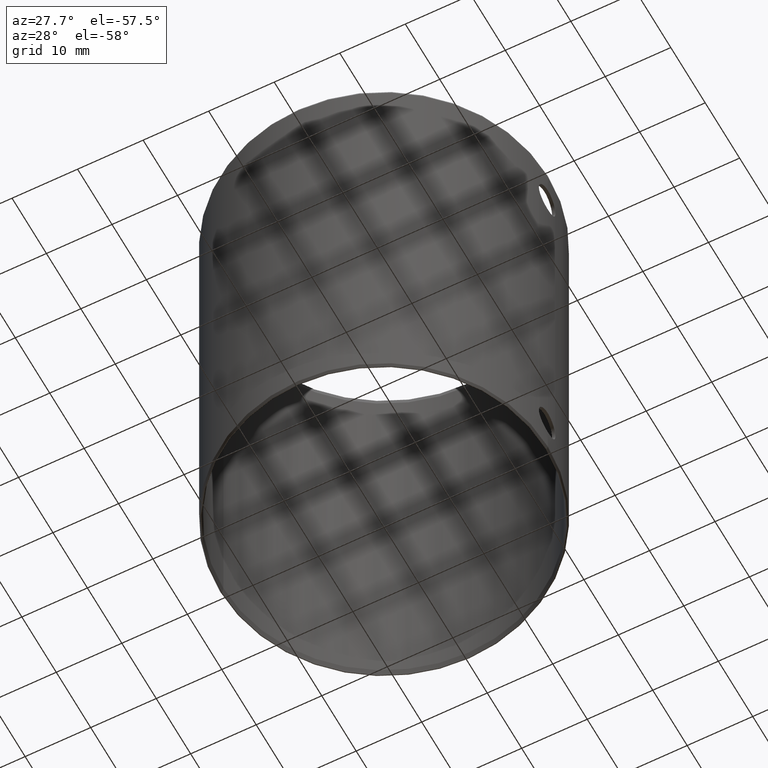
[diagram: clean part render]
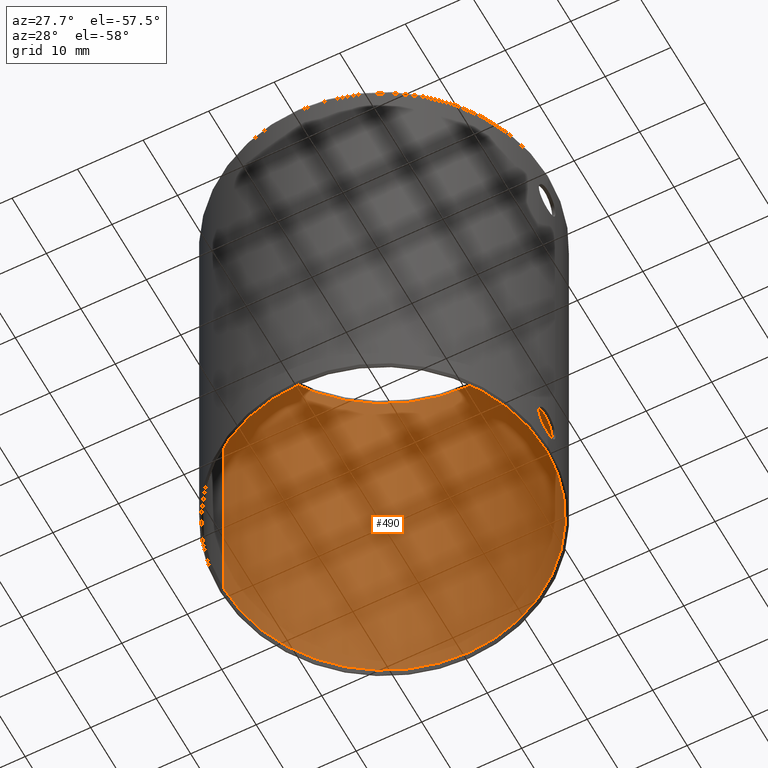
[diagram: same view with one face highlighted and labeled with its STEP entity id]
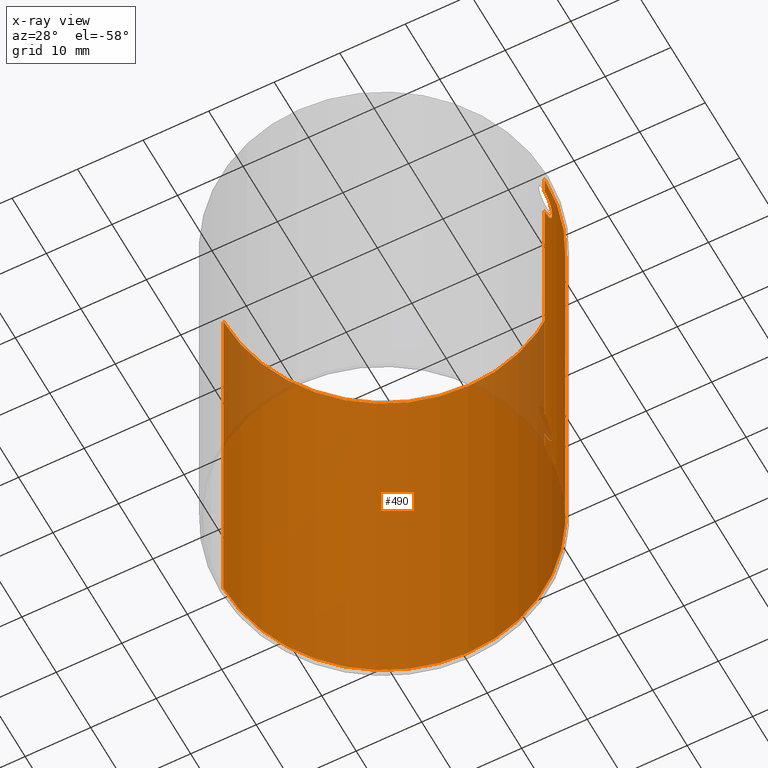
[diagram: x-ray of the same camera — body ghosted, the highlighted face saturated]
A machine part, auxiliary view. The second image highlights one B-rep face of the part: STEP entity #490.
The next image is the same camera in x-ray: the body ghosted, the highlighted face saturated — about 8% of this face is hidden behind the body in this view.
In plain terms, the highlighted cylindrical surface (partial cylindrical patch) has radius 24.5 mm, axis along (-0, -0, -1).
Its self-contained STEP definition (entity closure, byte-faithful):
#5 = VECTOR ( 'NONE', #476, 1000.000000000000000 ) ;
#17 = EDGE_CURVE ( 'NONE', #528, #645, #641, .T. ) ;
#19 = VERTEX_POINT ( 'NONE', #29 ) ;
#27 = CARTESIAN_POINT ( 'NONE',  ( 24.41151110846013600, 2.082251539747878200, 61.29633365754183000 ) ) ;
#28 = CARTESIAN_POINT ( 'NONE',  ( 24.38955891432469900, 2.323864925475290100, 63.11976947958540800 ) ) ;
#29 = CARTESIAN_POINT ( 'NONE',  ( -24.50000000000000000, 0.0000000000000000000, 1.000000000000042600 ) ) ;
#30 = EDGE_CURVE ( 'NONE', #325, #302, #788, .T. ) ;
#32 = CARTESIAN_POINT ( 'NONE',  ( 24.38215367992610500, 2.400121235163028600, 62.65668549765766900 ) ) ;
#37 = CARTESIAN_POINT ( 'NONE',  ( 24.43338947659767500, 1.808801199729553700, 8.085156302647970300 ) ) ;
#40 = CARTESIAN_POINT ( 'NONE',  ( 24.42559035520906400, 1.910012036205030100, 7.961651414167699900 ) ) ;
#44 = CARTESIAN_POINT ( 'NONE',  ( 24.50000000000000000, 3.000384657911015500E-015, 69.00000000000000000 ) ) ;
#52 = CARTESIAN_POINT ( 'NONE',  ( 24.50000000000000000, 3.000384657911015500E-015, 68.00000000000015600 ) ) ;
#53 = CARTESIAN_POINT ( 'NONE',  ( -24.50000000000000000, 0.0000000000000000000, 68.00000000000015600 ) ) ;
#54 = CARTESIAN_POINT ( 'NONE',  ( 24.50000000000000000, -7.960204194457795500E-016, 8.900000000000000400 ) ) ;
#68 = FACE_OUTER_BOUND ( 'NONE', #667, .T. ) ;
#79 = ORIENTED_EDGE ( 'NONE', *, *, #787, .T. ) ;
#84 = CARTESIAN_POINT ( 'NONE',  ( 24.50000000000000400, 0.1566461560698938200, 4.099999999999999600 ) ) ;
#85 = CARTESIAN_POINT ( 'NONE',  ( 24.38369107138436600, 2.384647135837939300, 62.81292241405778000 ) ) ;
#92 = CARTESIAN_POINT ( 'NONE',  ( 24.50000000000000000, 3.000384675787022100E-015, 4.099999999999999600 ) ) ;
#94 = CARTESIAN_POINT ( 'NONE',  ( 24.38955891432469200, 2.323864925475296800, 7.119769479585399600 ) ) ;
#99 = CARTESIAN_POINT ( 'NONE',  ( 24.38964322231983000, 2.322982828804307100, 5.876929524469598000 ) ) ;
#105 = DIRECTION ( 'NONE',  ( -0.0000000000000000000, -0.0000000000000000000, -1.000000000000000000 ) ) ;
#106 = ORIENTED_EDGE ( 'NONE', *, *, #598, .T. ) ;
#109 = CARTESIAN_POINT ( 'NONE',  ( 24.50000000000000000, 3.000384657911015500E-015, 69.00000000000000000 ) ) ;
#129 = CARTESIAN_POINT ( 'NONE',  ( 24.42575234937275400, 1.907948699616059700, 5.035651715478032900 ) ) ;
#132 = VECTOR ( 'NONE', #671, 1000.000000000000000 ) ;
#136 = CARTESIAN_POINT ( 'NONE',  ( 24.43338947659767900, 1.808801199729551000, 64.08515630264796000 ) ) ;
#140 = CARTESIAN_POINT ( 'NONE',  ( 24.47196524663253200, 1.206838727512015400, 60.40208118236046900 ) ) ;
#146 = CARTESIAN_POINT ( 'NONE',  ( 24.44875390968204000, 1.587676087577083000, 8.306589860733083700 ) ) ;
#170 = ORIENTED_EDGE ( 'NONE', *, *, #30, .T. ) ;
#186 = CARTESIAN_POINT ( 'NONE',  ( 24.42559035520906000, 1.910012036205026100, 63.96165141416768300 ) ) ;
#187 = CARTESIAN_POINT ( 'NONE',  ( 24.50000000000000700, 0.1566461560698932900, 60.10000000000000100 ) ) ;
#194 = CARTESIAN_POINT ( 'NONE',  ( 24.50000000000000000, -7.960204194457795500E-016, 8.900000000000000400 ) ) ;
#196 = CARTESIAN_POINT ( 'NONE',  ( 24.49259097793635200, 0.6220691795854884600, 4.176651443060187300 ) ) ;
#197 = CARTESIAN_POINT ( 'NONE',  ( 24.38373468376589800, 2.384203977574828000, 6.183713051622882900 ) ) ;
#198 = CARTESIAN_POINT ( 'NONE',  ( 24.50000000000000700, 0.3172775841286012400, 8.900000000000002100 ) ) ;
#214 = DIRECTION ( 'NONE',  ( 1.000000000000000000, 0.0000000000000000000, 0.0000000000000000000 ) ) ;
#232 = LINE ( 'NONE', #44, #132 ) ;
#247 = CARTESIAN_POINT ( 'NONE',  ( 24.38964322231983300, 2.322982828804302600, 61.87692952446958800 ) ) ;
#250 = AXIS2_PLACEMENT_3D ( 'NONE', #674, #274, #214 ) ;
#251 = CARTESIAN_POINT ( 'NONE',  ( 24.42575234937275400, 1.907948699616057300, 61.03565171547803200 ) ) ;
#252 = CARTESIAN_POINT ( 'NONE',  ( 24.50000000000000700, 0.3172775841285949700, 64.90000000000002000 ) ) ;
#258 = CARTESIAN_POINT ( 'NONE',  ( 24.49353724681168700, 0.6324934365665536600, 8.836158783216284000 ) ) ;
#259 = CARTESIAN_POINT ( 'NONE',  ( 24.47196524663252900, 1.206838727512015800, 4.402081182360468000 ) ) ;
#260 = CIRCLE ( 'NONE', #250, 24.50000000000000000 ) ;
#262 = CARTESIAN_POINT ( 'NONE',  ( 24.40489148465764700, 2.157526364655349300, 7.562937783976222400 ) ) ;
#266 = EDGE_CURVE ( 'NONE', #528, #658, #540, .T. ) ;
#273 = CARTESIAN_POINT ( 'NONE',  ( 0.0000000000000000000, 0.0000000000000000000, 69.00000000000000000 ) ) ;
#274 = DIRECTION ( 'NONE',  ( 0.0000000000000000000, 0.0000000000000000000, 1.000000000000000000 ) ) ;
#299 = VECTOR ( 'NONE', #105, 1000.000000000000000 ) ;
#302 = VERTEX_POINT ( 'NONE', #691 ) ;
#307 = CARTESIAN_POINT ( 'NONE',  ( 24.50000000000000000, 3.000384657911015500E-015, 69.00000000000000000 ) ) ;
#309 = LINE ( 'NONE', #467, #5 ) ;
#314 = CARTESIAN_POINT ( 'NONE',  ( 24.47724968366754400, 1.065411481757196000, 64.65622814805495000 ) ) ;
#317 = CARTESIAN_POINT ( 'NONE',  ( 24.40502357541037500, 2.156036257598050300, 5.434061330933637600 ) ) ;
#323 = CARTESIAN_POINT ( 'NONE',  ( 24.45639106743687600, 1.467020564352039500, 8.405969377969761100 ) ) ;
#325 = VERTEX_POINT ( 'NONE', #689 ) ;
#337 = AXIS2_PLACEMENT_3D ( 'NONE', #546, #394, #782 ) ;
#348 = CARTESIAN_POINT ( 'NONE',  ( 24.50000000000000000, 3.000384657911015500E-015, 1.000000000000042600 ) ) ;
#381 = CARTESIAN_POINT ( 'NONE',  ( 24.45659574403835300, 1.474507113349707900, 60.58069917553353200 ) ) ;
#385 = CARTESIAN_POINT ( 'NONE',  ( 24.38217768668483700, 2.399877344770530800, 62.33962226241188600 ) ) ;
#393 = ORIENTED_EDGE ( 'NONE', *, *, #639, .T. ) ;
#394 = DIRECTION ( 'NONE',  ( -0.0000000000000000000, -0.0000000000000000000, -1.000000000000000000 ) ) ;
#397 = CARTESIAN_POINT ( 'NONE',  ( 24.43355421998985800, 1.806582362493937900, 4.912318707027452500 ) ) ;
#402 = DIRECTION ( 'NONE',  ( -0.0000000000000000000, -0.0000000000000000000, -1.000000000000000000 ) ) ;
#427 = CARTESIAN_POINT ( 'NONE',  ( 24.41151110846014300, 2.082251539747880900, 5.296333657541834100 ) ) ;
#441 = CARTESIAN_POINT ( 'NONE',  ( 24.39406583584257100, 2.276668631354080500, 61.72443727958553700 ) ) ;
#442 = CARTESIAN_POINT ( 'NONE',  ( 24.49353724681169500, 0.6324934365665468800, 64.83615878321627700 ) ) ;
#444 = DIRECTION ( 'NONE',  ( -0.0000000000000000000, -0.0000000000000000000, -1.000000000000000000 ) ) ;
#446 = ORIENTED_EDGE ( 'NONE', *, *, #17, .F. ) ;
#459 = CARTESIAN_POINT ( 'NONE',  ( 24.39395661505486500, 2.277834290487130700, 7.272157815390216700 ) ) ;
#467 = CARTESIAN_POINT ( 'NONE',  ( -24.50000000000000000, 0.0000000000000000000, 69.00000000000000000 ) ) ;
#476 = DIRECTION ( 'NONE',  ( -0.0000000000000000000, -0.0000000000000000000, -1.000000000000000000 ) ) ;
#490 = ADVANCED_FACE ( 'NONE', ( #68 ), #579, .F. ) ;
#497 = CARTESIAN_POINT ( 'NONE',  ( 24.39406583584257100, 2.276668631354085800, 5.724437279585534300 ) ) ;
#509 = CARTESIAN_POINT ( 'NONE',  ( 24.41136934985186700, 2.083904183028315100, 63.70079731468037200 ) ) ;
#512 = CARTESIAN_POINT ( 'NONE',  ( 24.49849772429317300, 0.3123973903241306600, 60.11518838233643400 ) ) ;
#515 = CARTESIAN_POINT ( 'NONE',  ( 24.50000000000000000, -6.938893903907228400E-015, 64.90000000000000600 ) ) ;
#517 = EDGE_CURVE ( 'NONE', #740, #302, #232, .T. ) ;
#525 = CARTESIAN_POINT ( 'NONE',  ( 24.47724968366754800, 1.065411481757203100, 8.656228148054960800 ) ) ;
#528 = VERTEX_POINT ( 'NONE', #786 ) ;
#540 = B_SPLINE_CURVE_WITH_KNOTS ( 'NONE', 3,
 ( #92, #84, #588, #196, #657, #259, #718, #397, #129, #427, #317, #497, #99, #197, #594, #660, #773, #94, #459, #262, #661, #40, #37, #146, #323, #715, #525, #258, #198, #194 ),
 .UNSPECIFIED., .F., .F.,
 ( 4, 2, 2, 2, 2, 2, 2, 2, 2, 2, 2, 2, 2, 2, 4 ),
 ( 0.007507993352721261200, 0.007977133049626215400, 0.008446272746531169700, 0.009384552140341078200, 0.009853691837246032400, 0.01032283153415098700, 0.01079197123105594300, 0.01126111092796089700, 0.01173025062486585100, 0.01219939032177080500, 0.01266853001867576000, 0.01313766971558071400, 0.01360680941248566800, 0.01407594910939062200, 0.01501422850320053100 ),
 .UNSPECIFIED. ) ;
#546 = CARTESIAN_POINT ( 'NONE',  ( 0.0000000000000000000, 0.0000000000000000000, 1.000000000000042600 ) ) ;
#574 = CARTESIAN_POINT ( 'NONE',  ( 24.50000000000000000, 3.000384675787416500E-015, 60.10000000000000100 ) ) ;
#579 = CYLINDRICAL_SURFACE ( 'NONE', #649, 24.50000000000000000 ) ;
#580 = CARTESIAN_POINT ( 'NONE',  ( 24.49259097793635200, 0.6220691795854880200, 60.17665144306018000 ) ) ;
#588 = CARTESIAN_POINT ( 'NONE',  ( 24.49849772429318100, 0.3123973903241312700, 4.115188382336428100 ) ) ;
#593 = VERTEX_POINT ( 'NONE', #53 ) ;
#594 = CARTESIAN_POINT ( 'NONE',  ( 24.38217768668483400, 2.399877344770534800, 6.339622262411877400 ) ) ;
#598 = EDGE_CURVE ( 'NONE', #19, #645, #653, .T. ) ;
#633 = VECTOR ( 'NONE', #444, 1000.000000000000000 ) ;
#639 = EDGE_CURVE ( 'NONE', #740, #593, #260, .T. ) ;
#641 = LINE ( 'NONE', #307, #633 ) ;
#643 = CARTESIAN_POINT ( 'NONE',  ( 24.40502357541037500, 2.156036257598044500, 61.43406133093363800 ) ) ;
#644 = CARTESIAN_POINT ( 'NONE',  ( 24.44875390968204700, 1.587676087577081000, 64.30658986073309800 ) ) ;
#645 = VERTEX_POINT ( 'NONE', #348 ) ;
#646 = CARTESIAN_POINT ( 'NONE',  ( 24.48821041285143700, 0.7735867518048874500, 60.22272217168409000 ) ) ;
#649 = AXIS2_PLACEMENT_3D ( 'NONE', #273, #402, #724 ) ;
#653 = CIRCLE ( 'NONE', #337, 24.50000000000000000 ) ;
#654 = ORIENTED_EDGE ( 'NONE', *, *, #774, .F. ) ;
#657 = CARTESIAN_POINT ( 'NONE',  ( 24.48821041285143700, 0.7735867518048886700, 4.222722171684098100 ) ) ;
#658 = VERTEX_POINT ( 'NONE', #54 ) ;
#660 = CARTESIAN_POINT ( 'NONE',  ( 24.38215367992611200, 2.400121235163033000, 6.656685497657676400 ) ) ;
#661 = CARTESIAN_POINT ( 'NONE',  ( 24.41136934985187100, 2.083904183028319600, 7.700797314680380100 ) ) ;
#667 = EDGE_LOOP ( 'NONE', ( #712, #393, #79, #106, #446, #686, #654, #170 ) ) ;
#671 = DIRECTION ( 'NONE',  ( -0.0000000000000000000, -0.0000000000000000000, -1.000000000000000000 ) ) ;
#674 = CARTESIAN_POINT ( 'NONE',  ( 0.0000000000000000000, 0.0000000000000000000, 68.00000000000015600 ) ) ;
#686 = ORIENTED_EDGE ( 'NONE', *, *, #266, .T. ) ;
#689 = CARTESIAN_POINT ( 'NONE',  ( 24.50000000000000000, 3.000384675787416500E-015, 60.10000000000000100 ) ) ;
#691 = CARTESIAN_POINT ( 'NONE',  ( 24.50000000000000000, -6.938893903907228400E-015, 64.90000000000000600 ) ) ;
#704 = CARTESIAN_POINT ( 'NONE',  ( 24.40489148465764300, 2.157526364655340000, 63.56293778397623100 ) ) ;
#706 = CARTESIAN_POINT ( 'NONE',  ( 24.45639106743687200, 1.467020564352036400, 64.40596937796974000 ) ) ;
#708 = CARTESIAN_POINT ( 'NONE',  ( 24.38373468376589800, 2.384203977574824500, 62.18371305162290200 ) ) ;
#712 = ORIENTED_EDGE ( 'NONE', *, *, #517, .F. ) ;
#715 = CARTESIAN_POINT ( 'NONE',  ( 24.47070004648576700, 1.205011458268930200, 8.581541734251514300 ) ) ;
#718 = CARTESIAN_POINT ( 'NONE',  ( 24.45659574403834200, 1.474507113349707900, 4.580699175533506900 ) ) ;
#724 = DIRECTION ( 'NONE',  ( -1.000000000000000000, 0.0000000000000000000, 0.0000000000000000000 ) ) ;
#740 = VERTEX_POINT ( 'NONE', #52 ) ;
#762 = CARTESIAN_POINT ( 'NONE',  ( 24.39395661505486100, 2.277834290487123200, 63.27215781539022300 ) ) ;
#764 = CARTESIAN_POINT ( 'NONE',  ( 24.47070004648576700, 1.205011458268928000, 64.58154173425151600 ) ) ;
#769 = CARTESIAN_POINT ( 'NONE',  ( 24.43355421998985800, 1.806582362493937400, 60.91231870702746700 ) ) ;
#773 = CARTESIAN_POINT ( 'NONE',  ( 24.38369107138436600, 2.384647135837945100, 6.812922414057784900 ) ) ;
#774 = EDGE_CURVE ( 'NONE', #325, #658, #777, .T. ) ;
#777 = LINE ( 'NONE', #109, #299 ) ;
#782 = DIRECTION ( 'NONE',  ( 1.000000000000000000, 0.0000000000000000000, 0.0000000000000000000 ) ) ;
#786 = CARTESIAN_POINT ( 'NONE',  ( 24.50000000000000000, 3.000384675787022100E-015, 4.099999999999999600 ) ) ;
#787 = EDGE_CURVE ( 'NONE', #593, #19, #309, .T. ) ;
#788 = B_SPLINE_CURVE_WITH_KNOTS ( 'NONE', 3,
 ( #574, #187, #512, #580, #646, #140, #381, #769, #251, #27, #643, #441, #247, #708, #385, #32, #85, #28, #762, #704, #509, #186, #136, #644, #706, #764, #314, #442, #252, #515 ),
 .UNSPECIFIED., .F., .F.,
 ( 4, 2, 2, 2, 2, 2, 2, 2, 2, 2, 2, 2, 2, 2, 4 ),
 ( 0.007507993352721268100, 0.007977133049626220600, 0.008446272746531173100, 0.009384552140341078200, 0.009853691837246032400, 0.01032283153415098500, 0.01079197123105593900, 0.01126111092796089200, 0.01173025062486584600, 0.01219939032177079800, 0.01266853001867575300, 0.01313766971558070700, 0.01360680941248566100, 0.01407594910939061400, 0.01501422850320053600 ),
 .UNSPECIFIED. ) ;